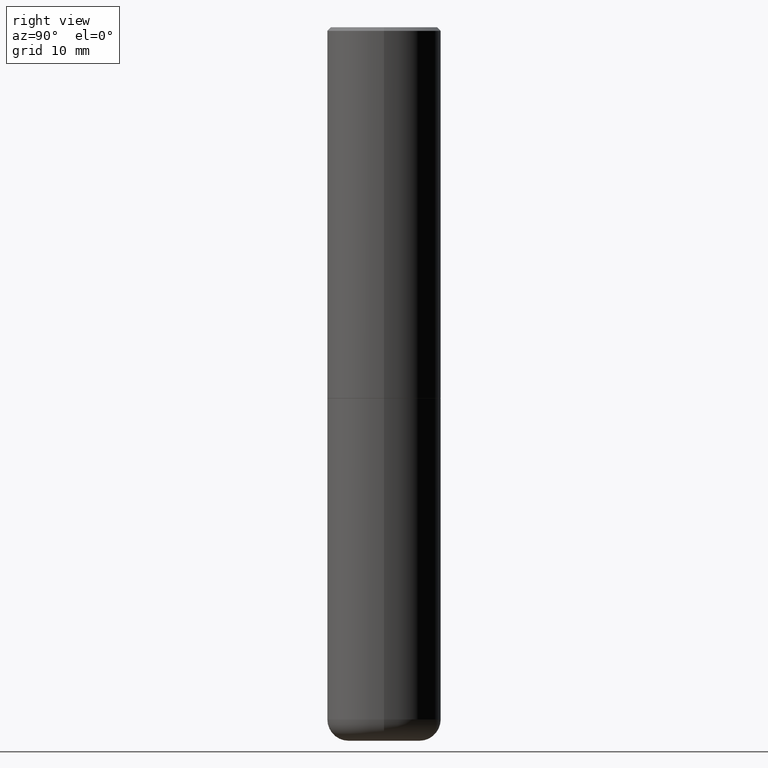
[diagram: clean part render]
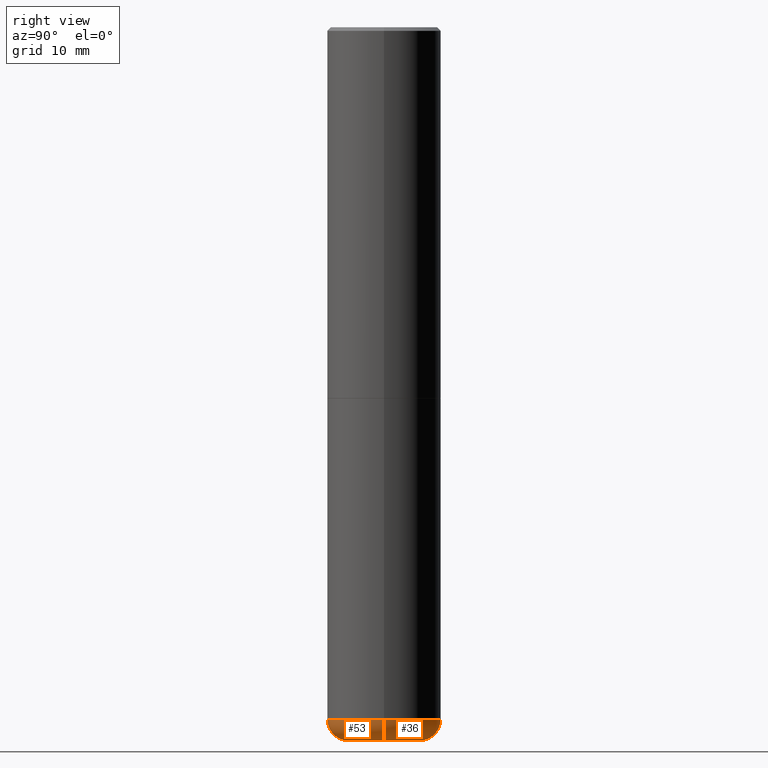
[diagram: same view with one multi-face feature highlighted, each face labeled with its STEP entity id]
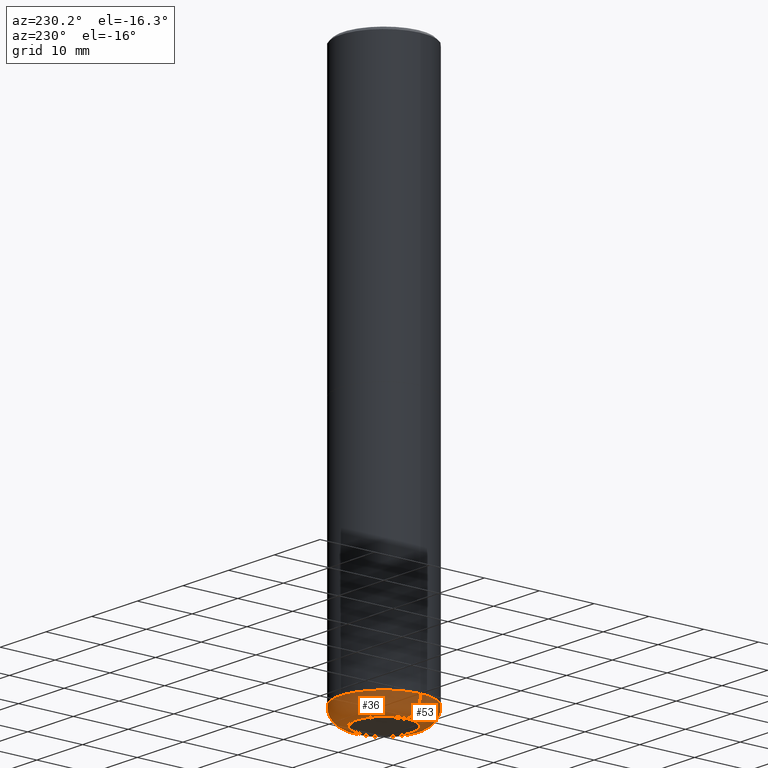
[diagram: same view with one multi-face feature highlighted, each face labeled with its STEP entity id]
A machine part, right view. The highlighted faces form ONE feature: a constant-radius fillet chain: 2 tangent blend faces with common blend radius 2.9997 mm. The faces share edges in the B-rep.
A second angle (auxiliary view) of the same feature is appended — it is thin or edge-on in the first view.
Their STEP definitions:
[1] entity #36 (Torus):
#3 = AXIS2_PLACEMENT_3D ( 'NONE', #181, #284, #86 ) ;
#36 = ADVANCED_FACE ( 'NONE', ( #84 ), #219, .T. ) ;
#37 = CIRCLE ( 'NONE', #225, 0.1180999999999999966 ) ;
#44 = CARTESIAN_POINT ( 'NONE',  ( 0.1968500000000000250, -1.470821428801063089E-14, -3.818900000000000183 ) ) ;
#48 = CARTESIAN_POINT ( 'NONE',  ( 9.627810689950883669E-29, -1.374596203102546341E-14, -3.937000000000000277 ) ) ;
#69 = CARTESIAN_POINT ( 'NONE',  ( 9.339000823940418668E-29, -1.333361808490808928E-14, -3.818900000000000183 ) ) ;
#79 = CIRCLE ( 'NONE', #367, 0.3149500000000000077 ) ;
#81 = DIRECTION ( 'NONE',  ( -2.445468806185136597E-29, 3.491481338843145583E-15, 1.000000000000000000 ) ) ;
#83 = DIRECTION ( 'NONE',  ( 1.000000000000000000, -6.982962677686267499E-15, 0.000000000000000000 ) ) ;
#84 = FACE_OUTER_BOUND ( 'NONE', #112, .T. ) ;
#85 = ORIENTED_EDGE ( 'NONE', *, *, #223, .T. ) ;
#86 = DIRECTION ( 'NONE',  ( 1.000000000000000000, -6.982962677686269866E-15, 4.883557194083113462E-29 ) ) ;
#112 = EDGE_LOOP ( 'NONE', ( #400, #85, #197, #359 ) ) ;
#132 = VERTEX_POINT ( 'NONE', #295 ) ;
#156 = CIRCLE ( 'NONE', #404, 0.1180999999999999966 ) ;
#159 = DIRECTION ( 'NONE',  ( -1.000000000000000000, 7.105427357601005014E-15, 0.000000000000000000 ) ) ;
#181 = CARTESIAN_POINT ( 'NONE',  ( 9.339000823940418668E-29, -1.333361808490808928E-14, -3.818900000000000183 ) ) ;
#182 = AXIS2_PLACEMENT_3D ( 'NONE', #48, #81, #83 ) ;
#197 = ORIENTED_EDGE ( 'NONE', *, *, #281, .F. ) ;
#211 = CARTESIAN_POINT ( 'NONE',  ( 0.3149500000000000077, -1.553290218024537915E-14, -3.818900000000000183 ) ) ;
#219 = TOROIDAL_SURFACE ( 'NONE', #3, 0.1968500000000000250, 0.1181000000000000105 ) ;
#222 = VERTEX_POINT ( 'NONE', #384 ) ;
#223 = EDGE_CURVE ( 'NONE', #222, #132, #156, .T. ) ;
#225 = AXIS2_PLACEMENT_3D ( 'NONE', #44, #394, #389 ) ;
#227 = DIRECTION ( 'NONE',  ( 7.105427357601001859E-15, 1.000000000000000000, -3.491481338843145583E-15 ) ) ;
#231 = CARTESIAN_POINT ( 'NONE',  ( -0.1968500000000000250, -1.193491470956433228E-14, -3.818900000000000183 ) ) ;
#242 = DIRECTION ( 'NONE',  ( 1.000000000000000000, -6.982962677686269866E-15, 0.000000000000000000 ) ) ;
#252 = VERTEX_POINT ( 'NONE', #324 ) ;
#261 = DIRECTION ( 'NONE',  ( -2.445468806185136597E-29, 3.491481338843145583E-15, 1.000000000000000000 ) ) ;
#281 = EDGE_CURVE ( 'NONE', #396, #132, #79, .T. ) ;
#284 = DIRECTION ( 'NONE',  ( -2.445468806185136597E-29, 3.491481338843145583E-15, 1.000000000000000000 ) ) ;
#295 = CARTESIAN_POINT ( 'NONE',  ( -0.3149500000000000077, -1.109576373863165330E-14, -3.818900000000000183 ) ) ;
#324 = CARTESIAN_POINT ( 'NONE',  ( 0.1968500000000000250, -1.512055823412800660E-14, -3.937000000000000277 ) ) ;
#356 = CIRCLE ( 'NONE', #182, 0.1968500000000000250 ) ;
#359 = ORIENTED_EDGE ( 'NONE', *, *, #366, .F. ) ;
#366 = EDGE_CURVE ( 'NONE', #252, #396, #37, .T. ) ;
#367 = AXIS2_PLACEMENT_3D ( 'NONE', #69, #261, #242 ) ;
#384 = CARTESIAN_POINT ( 'NONE',  ( -0.1968500000000000250, -1.172151119715668222E-14, -3.937000000000000277 ) ) ;
#389 = DIRECTION ( 'NONE',  ( 1.000000000000000000, -6.982962677686273021E-15, 0.000000000000000000 ) ) ;
#394 = DIRECTION ( 'NONE',  ( -6.982962677686266711E-15, -1.000000000000000000, 3.491481338843145583E-15 ) ) ;
#396 = VERTEX_POINT ( 'NONE', #211 ) ;
#400 = ORIENTED_EDGE ( 'NONE', *, *, #408, .T. ) ;
#404 = AXIS2_PLACEMENT_3D ( 'NONE', #231, #227, #159 ) ;
#408 = EDGE_CURVE ( 'NONE', #252, #222, #356, .T. ) ;
[2] entity #53 (Torus):
#10 = AXIS2_PLACEMENT_3D ( 'NONE', #357, #205, #237 ) ;
#13 = EDGE_CURVE ( 'NONE', #132, #396, #268, .T. ) ;
#17 = ORIENTED_EDGE ( 'NONE', *, *, #223, .F. ) ;
#29 = TOROIDAL_SURFACE ( 'NONE', #290, 0.1968500000000000250, 0.1181000000000000105 ) ;
#37 = CIRCLE ( 'NONE', #225, 0.1180999999999999966 ) ;
#44 = CARTESIAN_POINT ( 'NONE',  ( 0.1968500000000000250, -1.470821428801063089E-14, -3.818900000000000183 ) ) ;
#53 = ADVANCED_FACE ( 'NONE', ( #116 ), #29, .T. ) ;
#57 = DIRECTION ( 'NONE',  ( -2.445468806185136597E-29, 3.491481338843145583E-15, 1.000000000000000000 ) ) ;
#59 = ORIENTED_EDGE ( 'NONE', *, *, #366, .T. ) ;
#116 = FACE_OUTER_BOUND ( 'NONE', #258, .T. ) ;
#132 = VERTEX_POINT ( 'NONE', #295 ) ;
#149 = DIRECTION ( 'NONE',  ( 1.000000000000000000, -6.982962677686269866E-15, 0.000000000000000000 ) ) ;
#156 = CIRCLE ( 'NONE', #404, 0.1180999999999999966 ) ;
#159 = DIRECTION ( 'NONE',  ( -1.000000000000000000, 7.105427357601005014E-15, 0.000000000000000000 ) ) ;
#192 = CIRCLE ( 'NONE', #10, 0.1968500000000000250 ) ;
#205 = DIRECTION ( 'NONE',  ( -2.445468806185136597E-29, 3.491481338843145583E-15, 1.000000000000000000 ) ) ;
#211 = CARTESIAN_POINT ( 'NONE',  ( 0.3149500000000000077, -1.553290218024537915E-14, -3.818900000000000183 ) ) ;
#222 = VERTEX_POINT ( 'NONE', #384 ) ;
#223 = EDGE_CURVE ( 'NONE', #222, #132, #156, .T. ) ;
#225 = AXIS2_PLACEMENT_3D ( 'NONE', #44, #394, #389 ) ;
#227 = DIRECTION ( 'NONE',  ( 7.105427357601001859E-15, 1.000000000000000000, -3.491481338843145583E-15 ) ) ;
#231 = CARTESIAN_POINT ( 'NONE',  ( -0.1968500000000000250, -1.193491470956433228E-14, -3.818900000000000183 ) ) ;
#232 = ORIENTED_EDGE ( 'NONE', *, *, #320, .T. ) ;
#237 = DIRECTION ( 'NONE',  ( 1.000000000000000000, -6.982962677686267499E-15, 0.000000000000000000 ) ) ;
#252 = VERTEX_POINT ( 'NONE', #324 ) ;
#258 = EDGE_LOOP ( 'NONE', ( #17, #232, #59, #381 ) ) ;
#268 = CIRCLE ( 'NONE', #285, 0.3149500000000000077 ) ;
#285 = AXIS2_PLACEMENT_3D ( 'NONE', #318, #57, #149 ) ;
#290 = AXIS2_PLACEMENT_3D ( 'NONE', #314, #339, #344 ) ;
#295 = CARTESIAN_POINT ( 'NONE',  ( -0.3149500000000000077, -1.109576373863165330E-14, -3.818900000000000183 ) ) ;
#314 = CARTESIAN_POINT ( 'NONE',  ( 9.339000823940418668E-29, -1.333361808490808928E-14, -3.818900000000000183 ) ) ;
#318 = CARTESIAN_POINT ( 'NONE',  ( 9.339000823940418668E-29, -1.333361808490808928E-14, -3.818900000000000183 ) ) ;
#320 = EDGE_CURVE ( 'NONE', #222, #252, #192, .T. ) ;
#324 = CARTESIAN_POINT ( 'NONE',  ( 0.1968500000000000250, -1.512055823412800660E-14, -3.937000000000000277 ) ) ;
#339 = DIRECTION ( 'NONE',  ( -2.445468806185136597E-29, 3.491481338843145583E-15, 1.000000000000000000 ) ) ;
#344 = DIRECTION ( 'NONE',  ( 1.000000000000000000, -6.982962677686269866E-15, 4.883557194083113462E-29 ) ) ;
#357 = CARTESIAN_POINT ( 'NONE',  ( 9.627810689950883669E-29, -1.374596203102546341E-14, -3.937000000000000277 ) ) ;
#366 = EDGE_CURVE ( 'NONE', #252, #396, #37, .T. ) ;
#381 = ORIENTED_EDGE ( 'NONE', *, *, #13, .F. ) ;
#384 = CARTESIAN_POINT ( 'NONE',  ( -0.1968500000000000250, -1.172151119715668222E-14, -3.937000000000000277 ) ) ;
#389 = DIRECTION ( 'NONE',  ( 1.000000000000000000, -6.982962677686273021E-15, 0.000000000000000000 ) ) ;
#394 = DIRECTION ( 'NONE',  ( -6.982962677686266711E-15, -1.000000000000000000, 3.491481338843145583E-15 ) ) ;
#396 = VERTEX_POINT ( 'NONE', #211 ) ;
#404 = AXIS2_PLACEMENT_3D ( 'NONE', #231, #227, #159 ) ;